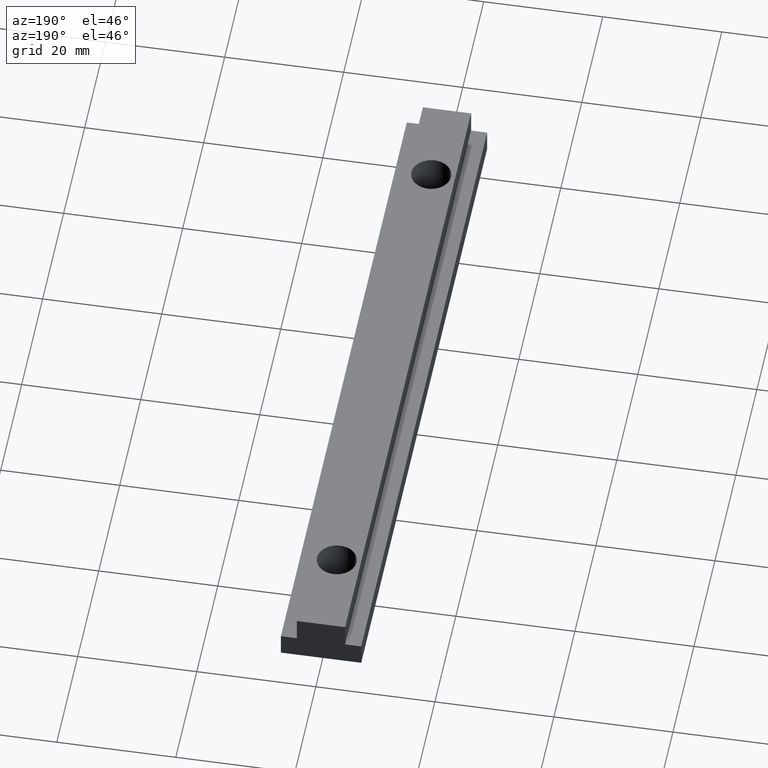
[diagram: clean part render]
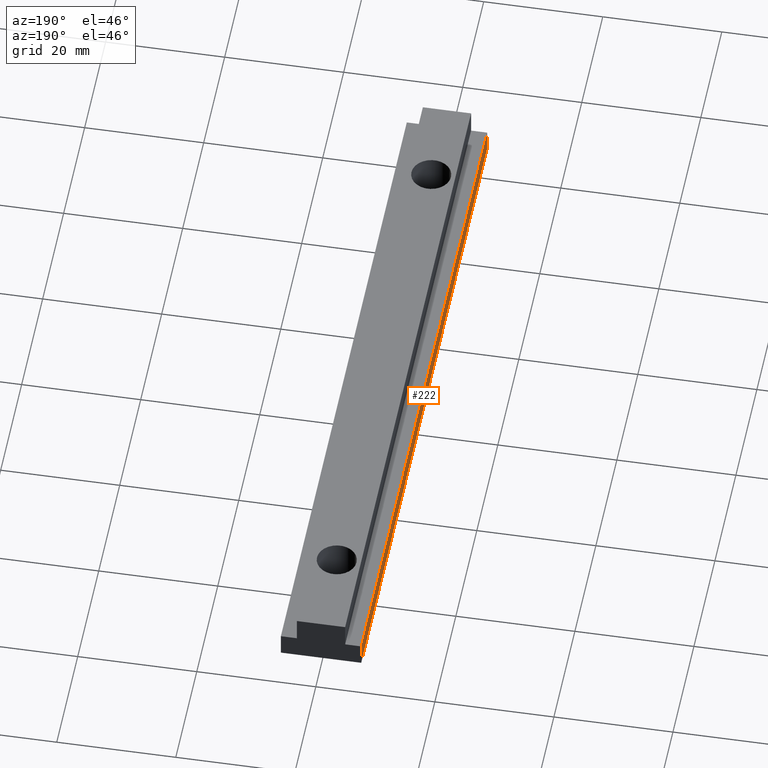
[diagram: same view with one face highlighted and labeled with its STEP entity id]
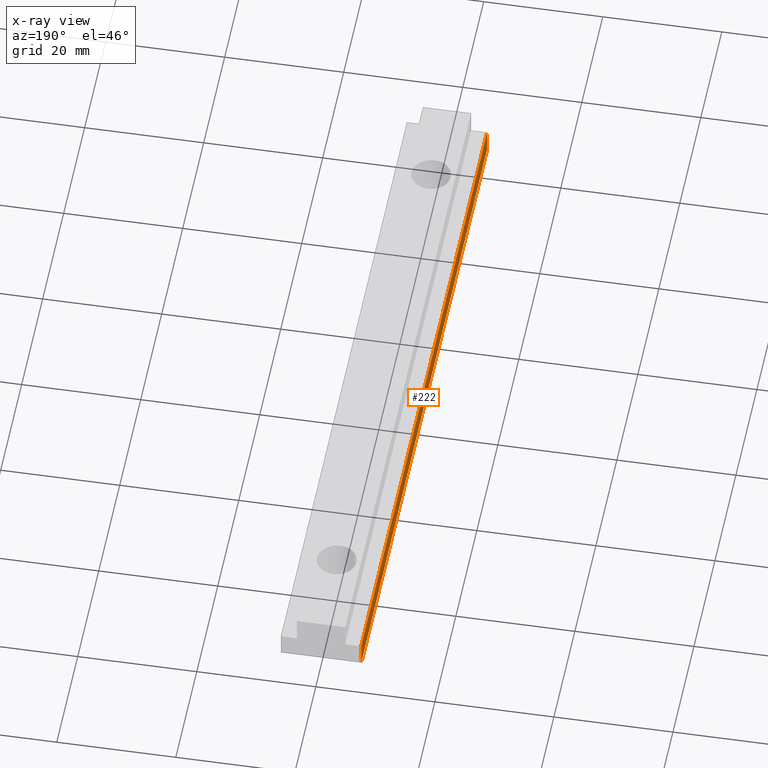
[diagram: x-ray of the same camera — body ghosted, the highlighted face saturated]
A machine part, auxiliary view. The second image highlights one B-rep face of the part: STEP entity #222.
The next image is the same camera in x-ray: the body ghosted, the highlighted face saturated — about 0% of this face is hidden behind the body in this view.
In plain terms, the highlighted planar face has unit normal (-1, 0, 0).
Its self-contained STEP definition (entity closure, byte-faithful):
#16=LINE('',#323,#40);
#19=LINE('',#329,#43);
#20=LINE('',#331,#44);
#21=LINE('',#332,#45);
#40=VECTOR('',#266,120.);
#43=VECTOR('',#271,3.89999999998463);
#44=VECTOR('',#272,120.);
#45=VECTOR('',#273,3.89999999998463);
#64=PLANE('',#240);
#82=FACE_OUTER_BOUND('',#96,.T.);
#96=EDGE_LOOP('',(#169,#170,#171,#172));
#118=VERTEX_POINT('',#320);
#119=VERTEX_POINT('',#322);
#121=VERTEX_POINT('',#328);
#122=VERTEX_POINT('',#330);
#138=EDGE_CURVE('',#118,#119,#16,.T.);
#141=EDGE_CURVE('',#118,#121,#19,.T.);
#142=EDGE_CURVE('',#121,#122,#20,.T.);
#143=EDGE_CURVE('',#119,#122,#21,.T.);
#169=ORIENTED_EDGE('',*,*,#141,.T.);
#170=ORIENTED_EDGE('',*,*,#142,.T.);
#171=ORIENTED_EDGE('',*,*,#143,.F.);
#172=ORIENTED_EDGE('',*,*,#138,.F.);
#222=ADVANCED_FACE('',(#82),#64,.T.);
#240=AXIS2_PLACEMENT_3D('',#327,#269,#270);
#266=DIRECTION('',(0.,-1.,0.));
#269=DIRECTION('center_axis',(-1.,0.,0.));
#270=DIRECTION('ref_axis',(0.,0.,1.));
#271=DIRECTION('',(0.,0.,-1.));
#272=DIRECTION('',(0.,-1.,0.));
#273=DIRECTION('',(0.,0.,-1.));
#320=CARTESIAN_POINT('',(-6.74999999997272,15.0000000004197,3.89999999998463));
#322=CARTESIAN_POINT('',(-6.74999999997272,-104.99999999958,3.89999999998463));
#323=CARTESIAN_POINT('',(-6.74999999997272,15.0000000004197,3.89999999998463));
#327=CARTESIAN_POINT('Origin',(-6.74999999997272,15.0000000004197,3.89999999998463));
#328=CARTESIAN_POINT('',(-6.74999999997272,15.0000000004197,-8.881784E-16));
#329=CARTESIAN_POINT('',(-6.74999999997272,15.0000000004197,3.89999999998463));
#330=CARTESIAN_POINT('',(-6.74999999997272,-104.99999999958,-8.881784E-16));
#331=CARTESIAN_POINT('',(-6.74999999997272,15.0000000004197,-8.881784E-16));
#332=CARTESIAN_POINT('',(-6.74999999997272,-104.99999999958,3.89999999998463));